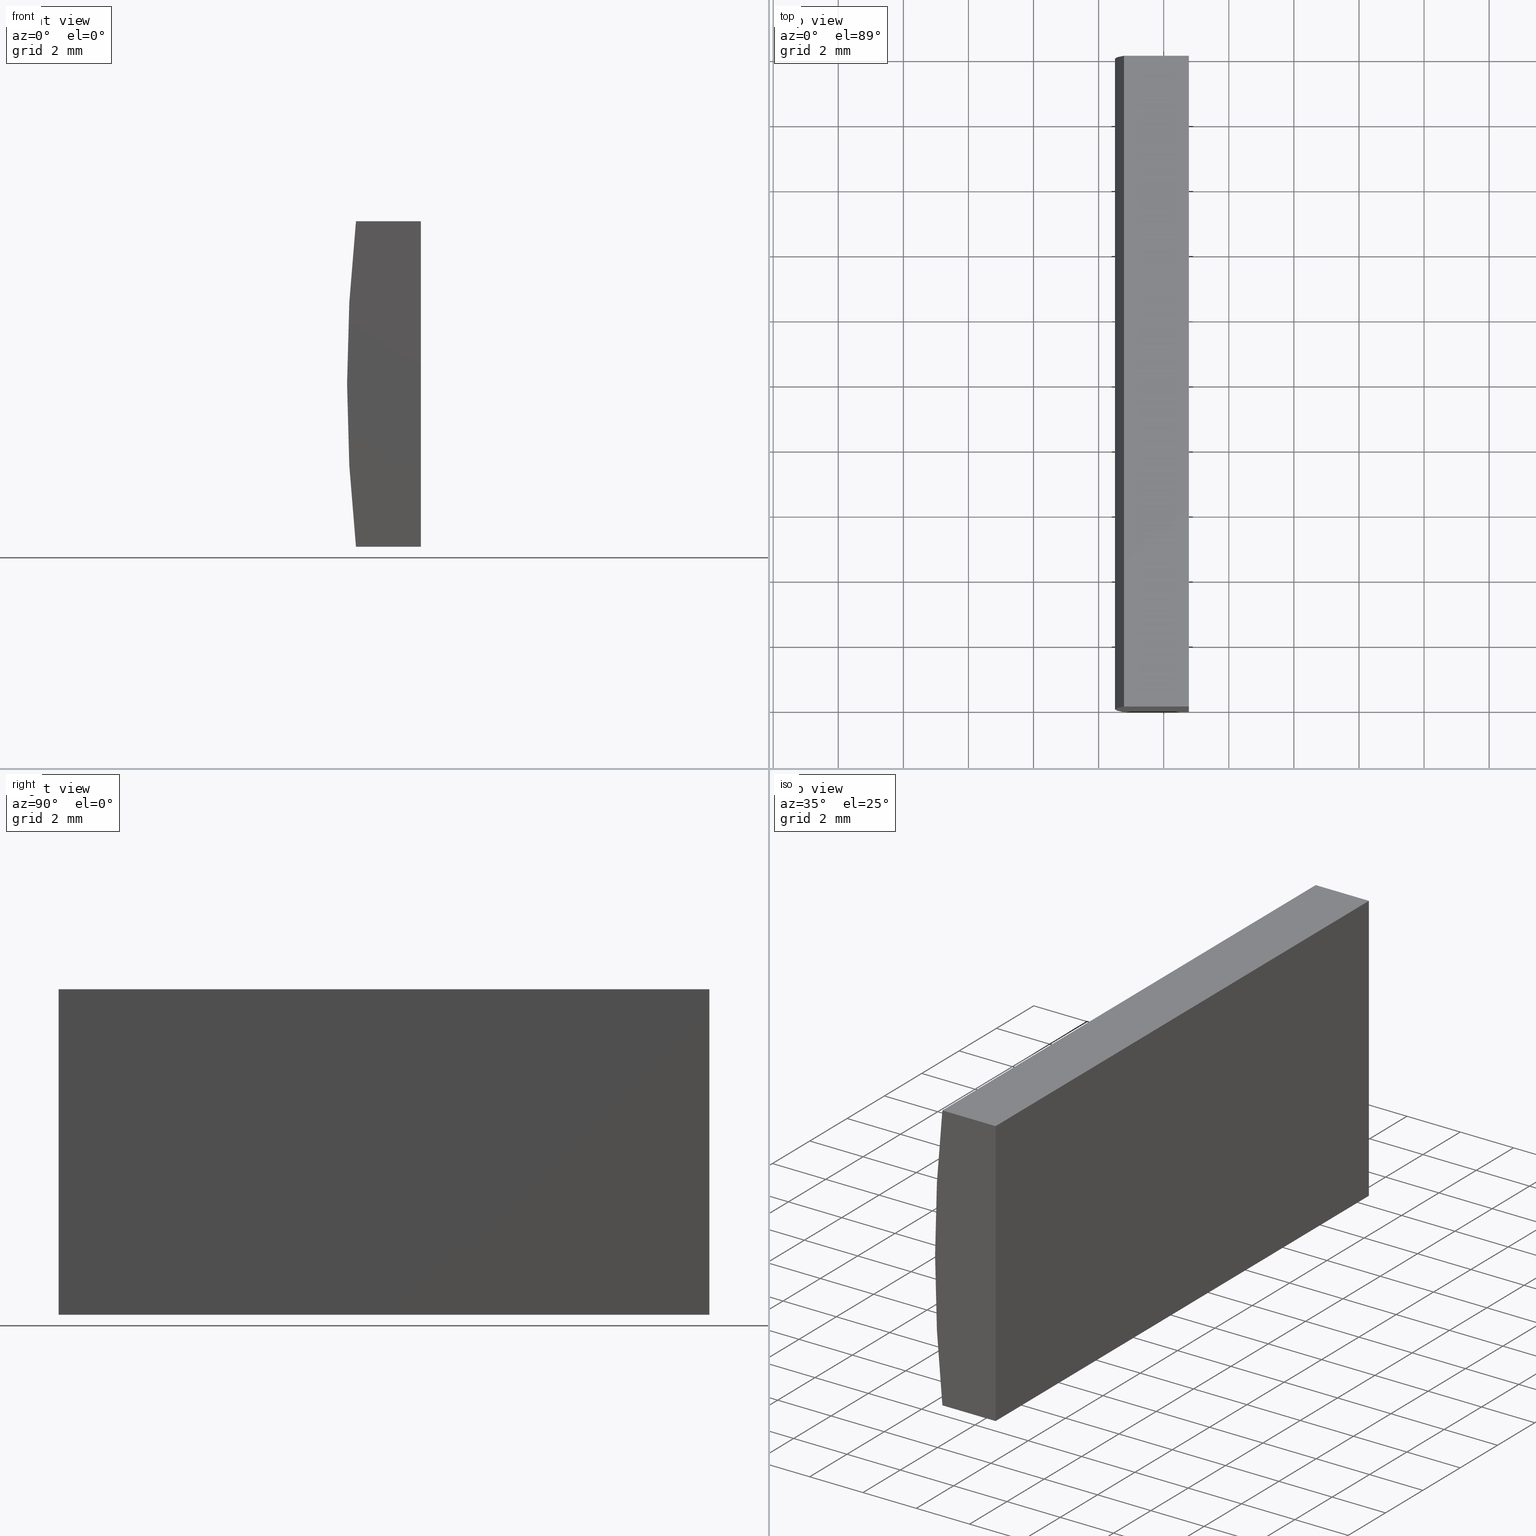
[diagram: canonical four-view strip — front | top / right | iso, engineering-drawing reading convention]
A machine part, canonical four-view strip (front | top / right | iso — engineering-drawing reading convention). The complete STEP part file that produces these views, byte-faithful:
ISO-10303-21;
HEADER;
FILE_DESCRIPTION (( 'STEP AP214' ),
    '1' );
FILE_NAME ('155285.STEP',
    '2019-06-26T02:32:32',
    ( 'user' ),
    ( '΢���й�' ),
    'SwSTEP 2.0',
    'SolidWorks 2016',
    '' );
FILE_SCHEMA (( 'AUTOMOTIVE_DESIGN' ));
ENDSEC;

DATA;
#1 = CARTESIAN_POINT ( 'NONE',  ( 4.355204334851265500, 0.0000000000000000000, 4.286263797015675000E-017 ) ) ;
#2 = SURFACE_STYLE_FILL_AREA ( #112 ) ;
#3 = MECHANICAL_DESIGN_GEOMETRIC_PRESENTATION_REPRESENTATION (  '', ( #63 ), #5 ) ;
#4 = FILL_AREA_STYLE_COLOUR ( '', #68 ) ;
#5 =( GEOMETRIC_REPRESENTATION_CONTEXT ( 3 ) GLOBAL_UNCERTAINTY_ASSIGNED_CONTEXT ( ( #43 ) ) GLOBAL_UNIT_ASSIGNED_CONTEXT ( ( #195, #175, #48 ) ) REPRESENTATION_CONTEXT ( 'NONE', 'WORKASPACE' ) );
#6 =( LENGTH_UNIT ( ) NAMED_UNIT ( * ) SI_UNIT ( .MILLI., .METRE. ) );
#7 =( GEOMETRIC_REPRESENTATION_CONTEXT ( 3 ) GLOBAL_UNCERTAINTY_ASSIGNED_CONTEXT ( ( #15 ) ) GLOBAL_UNIT_ASSIGNED_CONTEXT ( ( #6, #185, #59 ) ) REPRESENTATION_CONTEXT ( 'NONE', 'WORKASPACE' ) );
#8 = COLOUR_RGB ( '',1.000000000000000000, 1.000000000000000000, 1.000000000000000000 ) ;
#9 = PRESENTATION_STYLE_ASSIGNMENT (( #102 ) ) ;
#10 = VECTOR ( 'NONE', #142, 1000.000000000000000 ) ;
#11 = VERTEX_POINT ( 'NONE', #117 ) ;
#12 = VECTOR ( 'NONE', #154, 1000.000000000000000 ) ;
#13 = STYLED_ITEM ( 'NONE', ( #32 ), #194 ) ;
#14 = VECTOR ( 'NONE', #188, 1000.000000000000000 ) ;
#15 = UNCERTAINTY_MEASURE_WITH_UNIT (LENGTH_MEASURE( 1.000000000000000100E-005 ), #6, 'distance_accuracy_value', 'NONE');
#16 = ORIENTED_EDGE ( 'NONE', *, *, #98, .F. ) ;
#17 = ORIENTED_EDGE ( 'NONE', *, *, #189, .F. ) ;
#18 = DIRECTION ( 'NONE',  ( -1.000000000000000000, 0.0000000000000000000, 0.0000000000000000000 ) ) ;
#19 =( NAMED_UNIT ( * ) PLANE_ANGLE_UNIT ( ) SI_UNIT ( $, .RADIAN. ) );
#20 = DIRECTION ( 'NONE',  ( -0.0000000000000000000, -1.000000000000000000, -0.0000000000000000000 ) ) ;
#21 = EDGE_LOOP ( 'NONE', ( #111, #86, #174, #36 ) ) ;
#22 = PLANE ( 'NONE',  #34 ) ;
#23 = ORIENTED_EDGE ( 'NONE', *, *, #77, .F. ) ;
#24 = ADVANCED_FACE ( 'NONE', ( #148 ), #22, .F. ) ;
#25 = LINE ( 'NONE', #58, #176 ) ;
#26 = VERTEX_POINT ( 'NONE', #190 ) ;
#27 = VECTOR ( 'NONE', #46, 1000.000000000000000 ) ;
#28 = ORIENTED_EDGE ( 'NONE', *, *, #57, .F. ) ;
#29 = CARTESIAN_POINT ( 'NONE',  ( -39.22479566514873300, 0.0000000000000000000, -5.000000000000001800 ) ) ;
#30 = ORIENTED_EDGE ( 'NONE', *, *, #152, .T. ) ;
#31 = AXIS2_PLACEMENT_3D ( 'NONE', #100, #65, #119 ) ;
#32 = PRESENTATION_STYLE_ASSIGNMENT (( #162 ) ) ;
#33 = PLANE ( 'NONE',  #39 ) ;
#34 = AXIS2_PLACEMENT_3D ( 'NONE', #107, #18, #94 ) ;
#35 = VECTOR ( 'NONE', #172, 1000.000000000000000 ) ;
#36 = ORIENTED_EDGE ( 'NONE', *, *, #189, .T. ) ;
#37 = ORIENTED_EDGE ( 'NONE', *, *, #98, .T. ) ;
#38 = PLANE ( 'NONE',  #82 ) ;
#39 = AXIS2_PLACEMENT_3D ( 'NONE', #168, #44, #85 ) ;
#40 = DIRECTION ( 'NONE',  ( -0.0000000000000000000, -1.000000000000000000, -0.0000000000000000000 ) ) ;
#41 = EDGE_LOOP ( 'NONE', ( #37, #17, #179, #70 ) ) ;
#42 = ADVANCED_FACE ( 'NONE', ( #75 ), #140, .T. ) ;
#43 = UNCERTAINTY_MEASURE_WITH_UNIT (LENGTH_MEASURE( 1.000000000000000100E-005 ), #195, 'distance_accuracy_value', 'NONE');
#44 = DIRECTION ( 'NONE',  ( 0.0000000000000000000, 1.000000000000000000, 0.0000000000000000000 ) ) ;
#45 = DIRECTION ( 'NONE',  ( 0.0000000000000000000, 1.000000000000000000, 0.0000000000000000000 ) ) ;
#46 = DIRECTION ( 'NONE',  ( 1.000000000000000000, 0.0000000000000000000, 0.0000000000000000000 ) ) ;
#47 = DIRECTION ( 'NONE',  ( 0.0000000000000000000, 0.0000000000000000000, 1.000000000000000000 ) ) ;
#48 =( NAMED_UNIT ( * ) SI_UNIT ( $, .STERADIAN. ) SOLID_ANGLE_UNIT ( ) );
#49 = DIRECTION ( 'NONE',  ( 1.000000000000000000, 0.0000000000000000000, -8.688577051694975100E-016 ) ) ;
#50 = EDGE_LOOP ( 'NONE', ( #160, #97, #113, #51 ) ) ;
#51 = ORIENTED_EDGE ( 'NONE', *, *, #155, .T. ) ;
#52 = UNCERTAINTY_MEASURE_WITH_UNIT (LENGTH_MEASURE( 1.000000000000000100E-005 ), #204, 'distance_accuracy_value', 'NONE');
#53 = SHAPE_DEFINITION_REPRESENTATION ( #101, #84 ) ;
#54 = FACE_OUTER_BOUND ( 'NONE', #64, .T. ) ;
#55 = PRESENTATION_LAYER_ASSIGNMENT (  '', '', ( #63 ) ) ;
#56 = LINE ( 'NONE', #165, #202 ) ;
#57 = EDGE_CURVE ( 'NONE', #203, #11, #151, .T. ) ;
#58 = CARTESIAN_POINT ( 'NONE',  ( -39.22479566514873300, 20.00000000000000000, -5.000000000000001800 ) ) ;
#59 =( NAMED_UNIT ( * ) SI_UNIT ( $, .STERADIAN. ) SOLID_ANGLE_UNIT ( ) );
#60 = ORIENTED_EDGE ( 'NONE', *, *, #108, .F. ) ;
#61 = VERTEX_POINT ( 'NONE', #109 ) ;
#62 = CARTESIAN_POINT ( 'NONE',  ( -41.22135213884472900, 0.0000000000000000000, 5.000000000000000000 ) ) ;
#63 = STYLED_ITEM ( 'NONE', ( #9 ), #84 ) ;
#64 = EDGE_LOOP ( 'NONE', ( #181, #66, #115, #187 ) ) ;
#65 = DIRECTION ( 'NONE',  ( 0.0000000000000000000, 0.0000000000000000000, 1.000000000000000000 ) ) ;
#66 = ORIENTED_EDGE ( 'NONE', *, *, #71, .F. ) ;
#67 = CIRCLE ( 'NONE', #127, 45.85000000000000100 ) ;
#68 = COLOUR_RGB ( '',1.000000000000000000, 1.000000000000000000, 1.000000000000000000 ) ;
#69 = LINE ( 'NONE', #186, #104 ) ;
#70 = ORIENTED_EDGE ( 'NONE', *, *, #71, .T. ) ;
#71 = EDGE_CURVE ( 'NONE', #81, #11, #145, .T. ) ;
#72 = CARTESIAN_POINT ( 'NONE',  ( -41.22135213884472900, 0.0000000000000000000, 5.000000000000000000 ) ) ;
#73 = PRODUCT_CONTEXT ( 'NONE', #161, 'mechanical' ) ;
#74 = ORIENTED_EDGE ( 'NONE', *, *, #114, .F. ) ;
#75 = FACE_OUTER_BOUND ( 'NONE', #116, .T. ) ;
#76 = DIRECTION ( 'NONE',  ( 0.0000000000000000000, 0.0000000000000000000, 1.000000000000000000 ) ) ;
#77 = EDGE_CURVE ( 'NONE', #150, #130, #147, .T. ) ;
#78 = DIRECTION ( 'NONE',  ( 0.0000000000000000000, 1.000000000000000000, 0.0000000000000000000 ) ) ;
#79 = DIRECTION ( 'NONE',  ( 8.688577051694975100E-016, -0.0000000000000000000, 1.000000000000000000 ) ) ;
#80 = AXIS2_PLACEMENT_3D ( 'NONE', #158, #45, #47 ) ;
#81 = VERTEX_POINT ( 'NONE', #184 ) ;
#82 = AXIS2_PLACEMENT_3D ( 'NONE', #178, #78, #157 ) ;
#83 = PRODUCT_RELATED_PRODUCT_CATEGORY ( 'part', '', ( #133 ) ) ;
#84 = ADVANCED_BREP_SHAPE_REPRESENTATION ( '155285', ( #194, #31 ), #7 ) ;
#85 = DIRECTION ( 'NONE',  ( 0.0000000000000000000, -0.0000000000000000000, 1.000000000000000000 ) ) ;
#86 = ORIENTED_EDGE ( 'NONE', *, *, #152, .F. ) ;
#87 = DIRECTION ( 'NONE',  ( 0.0000000000000000000, 1.000000000000000000, 0.0000000000000000000 ) ) ;
#88 = CARTESIAN_POINT ( 'NONE',  ( -41.22135213884472900, 20.00000000000000000, -5.000000000000000000 ) ) ;
#89 = CARTESIAN_POINT ( 'NONE',  ( -39.22479566514873300, 20.00000000000000000, 5.000000000000000000 ) ) ;
#90 = PRESENTATION_LAYER_ASSIGNMENT (  '', '', ( #13 ) ) ;
#91 = EDGE_LOOP ( 'NONE', ( #74, #93, #16, #28 ) ) ;
#92 =( NAMED_UNIT ( * ) SI_UNIT ( $, .STERADIAN. ) SOLID_ANGLE_UNIT ( ) );
#93 = ORIENTED_EDGE ( 'NONE', *, *, #106, .F. ) ;
#94 = DIRECTION ( 'NONE',  ( 0.0000000000000000000, 0.0000000000000000000, 1.000000000000000000 ) ) ;
#95 = LINE ( 'NONE', #121, #12 ) ;
#96 = VECTOR ( 'NONE', #40, 1000.000000000000000 ) ;
#97 = ORIENTED_EDGE ( 'NONE', *, *, #138, .T. ) ;
#98 = EDGE_CURVE ( 'NONE', #11, #196, #99, .T. ) ;
#99 = LINE ( 'NONE', #29, #35 ) ;
#100 = CARTESIAN_POINT ( 'NONE',  ( 0.0000000000000000000, 0.0000000000000000000, 0.0000000000000000000 ) ) ;
#101 = PRODUCT_DEFINITION_SHAPE ( 'NONE', 'NONE',  #122 ) ;
#102 = SURFACE_STYLE_USAGE ( .BOTH. , #144 ) ;
#103 = PRODUCT_DEFINITION_FORMATION_WITH_SPECIFIED_SOURCE ( '�κ�', '', #133, .NOT_KNOWN. ) ;
#104 = VECTOR ( 'NONE', #126, 1000.000000000000000 ) ;
#105 = DIRECTION ( 'NONE',  ( -0.0000000000000000000, -1.000000000000000000, -0.0000000000000000000 ) ) ;
#106 = EDGE_CURVE ( 'NONE', #196, #26, #56, .T. ) ;
#107 = CARTESIAN_POINT ( 'NONE',  ( -39.22479566514873300, 20.00000000000000000, -5.000000000000001800 ) ) ;
#108 = EDGE_CURVE ( 'NONE', #130, #203, #169, .T. ) ;
#109 = CARTESIAN_POINT ( 'NONE',  ( -39.22479566514873300, 20.00000000000000000, -5.000000000000001800 ) ) ;
#110 = ADVANCED_FACE ( 'NONE', ( #182 ), #38, .F. ) ;
#111 = ORIENTED_EDGE ( 'NONE', *, *, #106, .T. ) ;
#112 = FILL_AREA_STYLE ('',( #134 ) ) ;
#113 = ORIENTED_EDGE ( 'NONE', *, *, #129, .T. ) ;
#114 = EDGE_CURVE ( 'NONE', #26, #203, #67, .T. ) ;
#115 = ORIENTED_EDGE ( 'NONE', *, *, #138, .F. ) ;
#116 = EDGE_LOOP ( 'NONE', ( #192, #60, #23, #30 ) ) ;
#117 = CARTESIAN_POINT ( 'NONE',  ( -39.22479566514873300, 0.0000000000000000000, 5.000000000000000000 ) ) ;
#118 = CARTESIAN_POINT ( 'NONE',  ( -41.22135213884472900, 20.00000000000000000, 5.000000000000000000 ) ) ;
#119 = DIRECTION ( 'NONE',  ( 1.000000000000000000, 0.0000000000000000000, 0.0000000000000000000 ) ) ;
#120 = APPLICATION_CONTEXT ( 'automotive_design' ) ;
#121 = CARTESIAN_POINT ( 'NONE',  ( -41.22135213884472900, 20.00000000000000000, -5.000000000000000000 ) ) ;
#122 = PRODUCT_DEFINITION ( 'δ֪', '', #103, #199 ) ;
#123 = FILL_AREA_STYLE ('',( #4 ) ) ;
#124 = AXIS2_PLACEMENT_3D ( 'NONE', #163, #105, #171 ) ;
#125 = DIRECTION ( 'NONE',  ( -0.0000000000000000000, -1.000000000000000000, -0.0000000000000000000 ) ) ;
#126 = DIRECTION ( 'NONE',  ( -0.0000000000000000000, -0.0000000000000000000, -1.000000000000000000 ) ) ;
#127 = AXIS2_PLACEMENT_3D ( 'NONE', #1, #87, #76 ) ;
#128 = ADVANCED_FACE ( 'NONE', ( #143 ), #33, .T. ) ;
#129 = EDGE_CURVE ( 'NONE', #81, #61, #69, .T. ) ;
#130 = VERTEX_POINT ( 'NONE', #139 ) ;
#131 = CLOSED_SHELL ( 'NONE', ( #42, #200, #24, #173, #128, #110 ) ) ;
#132 =( GEOMETRIC_REPRESENTATION_CONTEXT ( 3 ) GLOBAL_UNCERTAINTY_ASSIGNED_CONTEXT ( ( #52 ) ) GLOBAL_UNIT_ASSIGNED_CONTEXT ( ( #204, #19, #92 ) ) REPRESENTATION_CONTEXT ( 'NONE', 'WORKASPACE' ) );
#133 = PRODUCT ( '155285', '155285', '', ( #73 ) ) ;
#134 = FILL_AREA_STYLE_COLOUR ( '', #8 ) ;
#135 = PLANE ( 'NONE',  #197 ) ;
#136 = SURFACE_SIDE_STYLE ('',( #2 ) ) ;
#137 = LINE ( 'NONE', #118, #27 ) ;
#138 = EDGE_CURVE ( 'NONE', #130, #81, #137, .T. ) ;
#139 = CARTESIAN_POINT ( 'NONE',  ( -41.22135213884472900, 20.00000000000000000, 5.000000000000000000 ) ) ;
#140 = CYLINDRICAL_SURFACE ( 'NONE', #124, 45.85000000000000100 ) ;
#141 = DIRECTION ( 'NONE',  ( 0.0000000000000000000, 0.0000000000000000000, -1.000000000000000000 ) ) ;
#142 = DIRECTION ( 'NONE',  ( 1.000000000000000000, 0.0000000000000000000, 0.0000000000000000000 ) ) ;
#143 = FACE_OUTER_BOUND ( 'NONE', #50, .T. ) ;
#144 = SURFACE_SIDE_STYLE ('',( #149 ) ) ;
#145 = LINE ( 'NONE', #89, #191 ) ;
#146 = DIRECTION ( 'NONE',  ( -1.000000000000000000, 0.0000000000000000000, -0.0000000000000000000 ) ) ;
#147 = CIRCLE ( 'NONE', #80, 45.85000000000000100 ) ;
#148 = FACE_OUTER_BOUND ( 'NONE', #41, .T. ) ;
#149 = SURFACE_STYLE_FILL_AREA ( #123 ) ;
#150 = VERTEX_POINT ( 'NONE', #153 ) ;
#151 = LINE ( 'NONE', #72, #10 ) ;
#152 = EDGE_CURVE ( 'NONE', #150, #26, #183, .T. ) ;
#153 = CARTESIAN_POINT ( 'NONE',  ( -41.22135213884472900, 20.00000000000000000, -5.000000000000000000 ) ) ;
#154 = DIRECTION ( 'NONE',  ( -1.000000000000000000, -0.0000000000000000000, 8.688577051694975100E-016 ) ) ;
#155 = EDGE_CURVE ( 'NONE', #61, #150, #95, .T. ) ;
#156 = APPLICATION_PROTOCOL_DEFINITION ( 'draft international standard', 'automotive_design', 1998, #120 ) ;
#157 = DIRECTION ( 'NONE',  ( 0.0000000000000000000, -0.0000000000000000000, 1.000000000000000000 ) ) ;
#158 = CARTESIAN_POINT ( 'NONE',  ( 4.355204334851265500, 20.00000000000000000, 4.286263797015675000E-017 ) ) ;
#159 = AXIS2_PLACEMENT_3D ( 'NONE', #167, #141, #146 ) ;
#160 = ORIENTED_EDGE ( 'NONE', *, *, #77, .T. ) ;
#161 = APPLICATION_CONTEXT ( 'automotive_design' ) ;
#162 = SURFACE_STYLE_USAGE ( .BOTH. , #136 ) ;
#163 = CARTESIAN_POINT ( 'NONE',  ( 4.355204334851265500, 20.00000000000000000, 4.286263797015675000E-017 ) ) ;
#164 = CARTESIAN_POINT ( 'NONE',  ( -41.22135213884472900, 20.00000000000000000, -5.000000000000000000 ) ) ;
#165 = CARTESIAN_POINT ( 'NONE',  ( -41.22135213884472900, 0.0000000000000000000, -5.000000000000000000 ) ) ;
#166 = APPLICATION_PROTOCOL_DEFINITION ( 'draft international standard', 'automotive_design', 1998, #161 ) ;
#167 = CARTESIAN_POINT ( 'NONE',  ( -41.22135213884472900, 20.00000000000000000, 5.000000000000000000 ) ) ;
#168 = CARTESIAN_POINT ( 'NONE',  ( 4.355204334851265500, 20.00000000000000000, 4.286263797015675000E-017 ) ) ;
#169 = LINE ( 'NONE', #177, #14 ) ;
#170 = MECHANICAL_DESIGN_GEOMETRIC_PRESENTATION_REPRESENTATION (  '', ( #13 ), #132 ) ;
#171 = DIRECTION ( 'NONE',  ( 0.0000000000000000000, 0.0000000000000000000, -1.000000000000000000 ) ) ;
#172 = DIRECTION ( 'NONE',  ( -0.0000000000000000000, -0.0000000000000000000, -1.000000000000000000 ) ) ;
#173 = ADVANCED_FACE ( 'NONE', ( #201 ), #135, .F. ) ;
#174 = ORIENTED_EDGE ( 'NONE', *, *, #155, .F. ) ;
#175 =( NAMED_UNIT ( * ) PLANE_ANGLE_UNIT ( ) SI_UNIT ( $, .RADIAN. ) );
#176 = VECTOR ( 'NONE', #20, 1000.000000000000000 ) ;
#177 = CARTESIAN_POINT ( 'NONE',  ( -41.22135213884472900, 20.00000000000000000, 5.000000000000000000 ) ) ;
#178 = CARTESIAN_POINT ( 'NONE',  ( 4.355204334851265500, 0.0000000000000000000, 4.286263797015675000E-017 ) ) ;
#179 = ORIENTED_EDGE ( 'NONE', *, *, #129, .F. ) ;
#180 = DIRECTION ( 'NONE',  ( -1.000000000000000000, -0.0000000000000000000, 8.688577051694975100E-016 ) ) ;
#181 = ORIENTED_EDGE ( 'NONE', *, *, #57, .T. ) ;
#182 = FACE_OUTER_BOUND ( 'NONE', #91, .T. ) ;
#183 = LINE ( 'NONE', #88, #96 ) ;
#184 = CARTESIAN_POINT ( 'NONE',  ( -39.22479566514873300, 20.00000000000000000, 5.000000000000000000 ) ) ;
#185 =( NAMED_UNIT ( * ) PLANE_ANGLE_UNIT ( ) SI_UNIT ( $, .RADIAN. ) );
#186 = CARTESIAN_POINT ( 'NONE',  ( -39.22479566514873300, 20.00000000000000000, -5.000000000000001800 ) ) ;
#187 = ORIENTED_EDGE ( 'NONE', *, *, #108, .T. ) ;
#188 = DIRECTION ( 'NONE',  ( -0.0000000000000000000, -1.000000000000000000, -0.0000000000000000000 ) ) ;
#189 = EDGE_CURVE ( 'NONE', #61, #196, #25, .T. ) ;
#190 = CARTESIAN_POINT ( 'NONE',  ( -41.22135213884472900, 0.0000000000000000000, -5.000000000000000000 ) ) ;
#191 = VECTOR ( 'NONE', #125, 1000.000000000000000 ) ;
#192 = ORIENTED_EDGE ( 'NONE', *, *, #114, .T. ) ;
#193 = CARTESIAN_POINT ( 'NONE',  ( -39.22479566514873300, 0.0000000000000000000, -5.000000000000001800 ) ) ;
#194 = MANIFOLD_SOLID_BREP ( '͹̨-����1', #131 ) ;
#195 =( LENGTH_UNIT ( ) NAMED_UNIT ( * ) SI_UNIT ( .MILLI., .METRE. ) );
#196 = VERTEX_POINT ( 'NONE', #193 ) ;
#197 = AXIS2_PLACEMENT_3D ( 'NONE', #164, #79, #49 ) ;
#198 = PLANE ( 'NONE',  #159 ) ;
#199 = PRODUCT_DEFINITION_CONTEXT ( 'detailed design', #120, 'design' ) ;
#200 = ADVANCED_FACE ( 'NONE', ( #54 ), #198, .F. ) ;
#201 = FACE_OUTER_BOUND ( 'NONE', #21, .T. ) ;
#202 = VECTOR ( 'NONE', #180, 1000.000000000000000 ) ;
#203 = VERTEX_POINT ( 'NONE', #62 ) ;
#204 =( LENGTH_UNIT ( ) NAMED_UNIT ( * ) SI_UNIT ( .MILLI., .METRE. ) );
ENDSEC;
END-ISO-10303-21;
